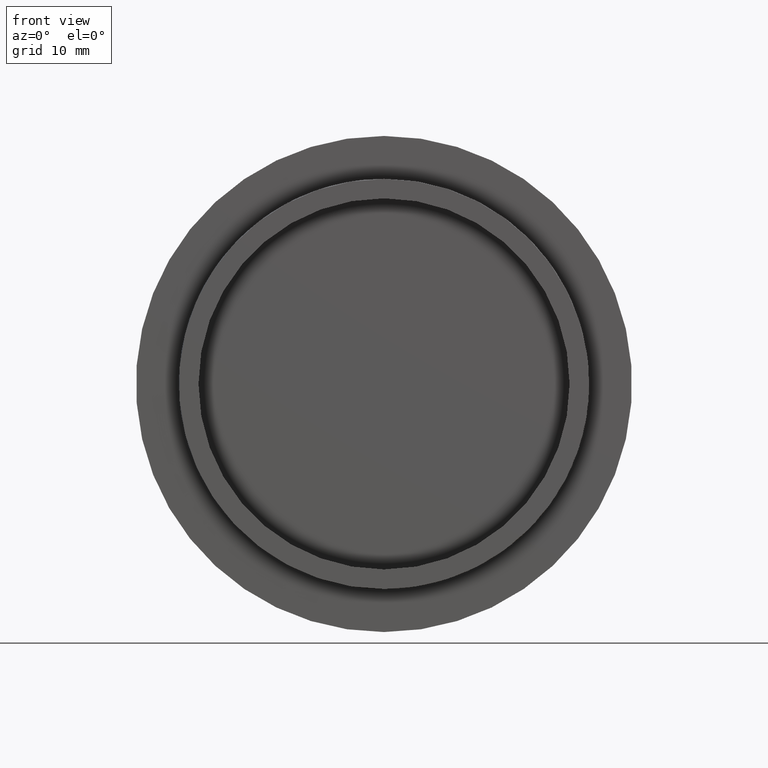
[diagram: clean part render]
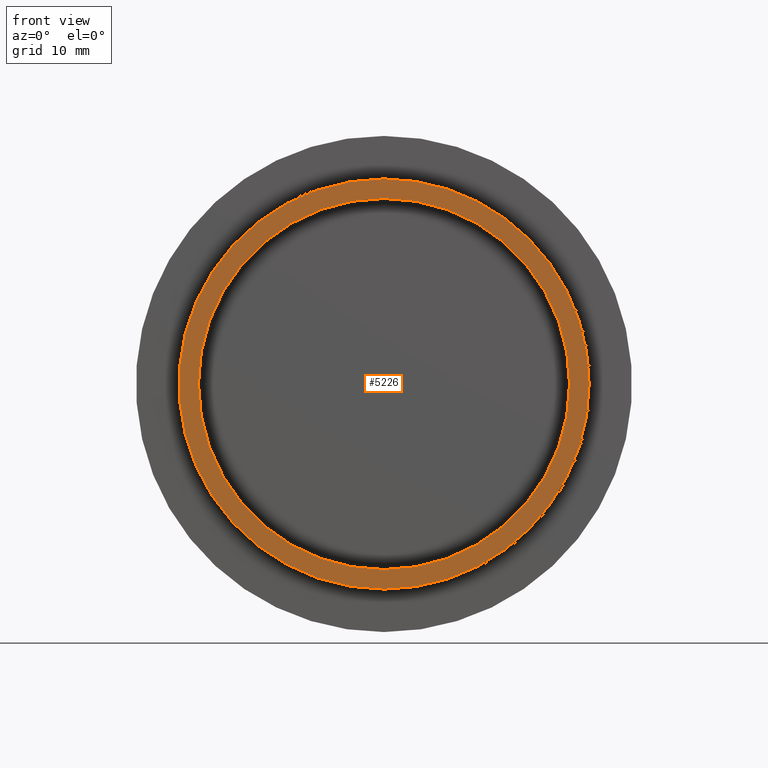
[diagram: same view with one face highlighted and labeled with its STEP entity id]
A machine part, front view. The second image highlights one B-rep face of the part: STEP entity #5226.
In plain terms, the highlighted planar face has unit normal (0, -1, -0).
Its self-contained STEP definition (entity closure, byte-faithful):
#350 = DIRECTION ( 'NONE',  ( -0.000000000000000000, -1.000000000000000000, -0.000000000000000000 ) ) ;
#398 = CARTESIAN_POINT ( 'NONE',  ( 0.000000000000000000, 0.000000000000000000, -21.00000000000000000 ) ) ;
#426 = AXIS2_PLACEMENT_3D ( 'NONE', #2580, #5407, #5912 ) ;
#646 = CARTESIAN_POINT ( 'NONE',  ( 21.00000000000000000, 2.908536147974963220E-16, 0.000000000000000000 ) ) ;
#762 = CIRCLE ( 'NONE', #4288, 21.00000000000000000 ) ;
#968 = EDGE_LOOP ( 'NONE', ( #3223, #6471 ) ) ;
#1178 = CARTESIAN_POINT ( 'NONE',  ( 0.000000000000000000, 5.817072295949926440E-16, 0.000000000000000000 ) ) ;
#1554 = CIRCLE ( 'NONE', #3822, 21.00000000000000000 ) ;
#1607 = ORIENTED_EDGE ( 'NONE', *, *, #2530, .T. ) ;
#1713 = CARTESIAN_POINT ( 'NONE',  ( 2.326828918379970970E-15, 5.817072295949926440E-16, 19.00000000000000000 ) ) ;
#1739 = DIRECTION ( 'NONE',  ( 0.000000000000000000, 0.000000000000000000, -1.000000000000000000 ) ) ;
#1850 = EDGE_CURVE ( 'NONE', #3345, #5154, #3947, .T. ) ;
#2139 = VERTEX_POINT ( 'NONE', #3507 ) ;
#2238 = CARTESIAN_POINT ( 'NONE',  ( 0.000000000000000000, 5.817072295949926440E-16, -19.00000000000000000 ) ) ;
#2314 = DIRECTION ( 'NONE',  ( -0.000000000000000000, -1.000000000000000000, -0.000000000000000000 ) ) ;
#2331 = ORIENTED_EDGE ( 'NONE', *, *, #3075, .T. ) ;
#2526 = DIRECTION ( 'NONE',  ( -0.000000000000000000, -1.000000000000000000, -0.000000000000000000 ) ) ;
#2530 = EDGE_CURVE ( 'NONE', #2139, #3550, #762, .T. ) ;
#2580 = CARTESIAN_POINT ( 'NONE',  ( 0.000000000000000000, 0.000000000000000000, 0.000000000000000000 ) ) ;
#2916 = DIRECTION ( 'NONE',  ( 0.000000000000000000, 0.000000000000000000, -1.000000000000000000 ) ) ;
#3075 = EDGE_CURVE ( 'NONE', #3550, #5466, #5899, .T. ) ;
#3103 = DIRECTION ( 'NONE',  ( 0.000000000000000000, 0.000000000000000000, -1.000000000000000000 ) ) ;
#3223 = ORIENTED_EDGE ( 'NONE', *, *, #6928, .F. ) ;
#3345 = VERTEX_POINT ( 'NONE', #1713 ) ;
#3346 = FACE_BOUND ( 'NONE', #968, .T. ) ;
#3354 = DIRECTION ( 'NONE',  ( 0.000000000000000000, 0.000000000000000000, -1.000000000000000000 ) ) ;
#3437 = EDGE_LOOP ( 'NONE', ( #3645, #1607, #2331 ) ) ;
#3501 = DIRECTION ( 'NONE',  ( -0.000000000000000000, -1.000000000000000000, -0.000000000000000000 ) ) ;
#3507 = CARTESIAN_POINT ( 'NONE',  ( 2.571758278209441661E-15, 0.000000000000000000, 21.00000000000000000 ) ) ;
#3550 = VERTEX_POINT ( 'NONE', #398 ) ;
#3645 = ORIENTED_EDGE ( 'NONE', *, *, #3735, .T. ) ;
#3735 = EDGE_CURVE ( 'NONE', #5466, #2139, #1554, .T. ) ;
#3822 = AXIS2_PLACEMENT_3D ( 'NONE', #5048, #3501, #3103 ) ;
#3947 = CIRCLE ( 'NONE', #5778, 19.00000000000000000 ) ;
#4288 = AXIS2_PLACEMENT_3D ( 'NONE', #4553, #350, #5128 ) ;
#4553 = CARTESIAN_POINT ( 'NONE',  ( 0.000000000000000000, 0.000000000000000000, 0.000000000000000000 ) ) ;
#4671 = CARTESIAN_POINT ( 'NONE',  ( 21.00000000000000000, 0.000000000000000000, 0.000000000000000000 ) ) ;
#5048 = CARTESIAN_POINT ( 'NONE',  ( 0.000000000000000000, 0.000000000000000000, 0.000000000000000000 ) ) ;
#5128 = DIRECTION ( 'NONE',  ( 0.000000000000000000, 0.000000000000000000, -1.000000000000000000 ) ) ;
#5154 = VERTEX_POINT ( 'NONE', #2238 ) ;
#5226 = ADVANCED_FACE ( 'NONE', ( #6603, #3346 ), #5532, .T. ) ;
#5407 = DIRECTION ( 'NONE',  ( -0.000000000000000000, -1.000000000000000000, -0.000000000000000000 ) ) ;
#5466 = VERTEX_POINT ( 'NONE', #4671 ) ;
#5532 = PLANE ( 'NONE',  #5557 ) ;
#5557 = AXIS2_PLACEMENT_3D ( 'NONE', #646, #6566, #1739 ) ;
#5778 = AXIS2_PLACEMENT_3D ( 'NONE', #1178, #2314, #3354 ) ;
#5793 = AXIS2_PLACEMENT_3D ( 'NONE', #6849, #2526, #2916 ) ;
#5899 = CIRCLE ( 'NONE', #426, 21.00000000000000000 ) ;
#5912 = DIRECTION ( 'NONE',  ( 0.000000000000000000, 0.000000000000000000, -1.000000000000000000 ) ) ;
#6471 = ORIENTED_EDGE ( 'NONE', *, *, #1850, .F. ) ;
#6476 = CIRCLE ( 'NONE', #5793, 19.00000000000000000 ) ;
#6566 = DIRECTION ( 'NONE',  ( 0.000000000000000000, -1.000000000000000000, -0.000000000000000000 ) ) ;
#6603 = FACE_OUTER_BOUND ( 'NONE', #3437, .T. ) ;
#6849 = CARTESIAN_POINT ( 'NONE',  ( 0.000000000000000000, 5.817072295949926440E-16, 0.000000000000000000 ) ) ;
#6928 = EDGE_CURVE ( 'NONE', #5154, #3345, #6476, .T. ) ;